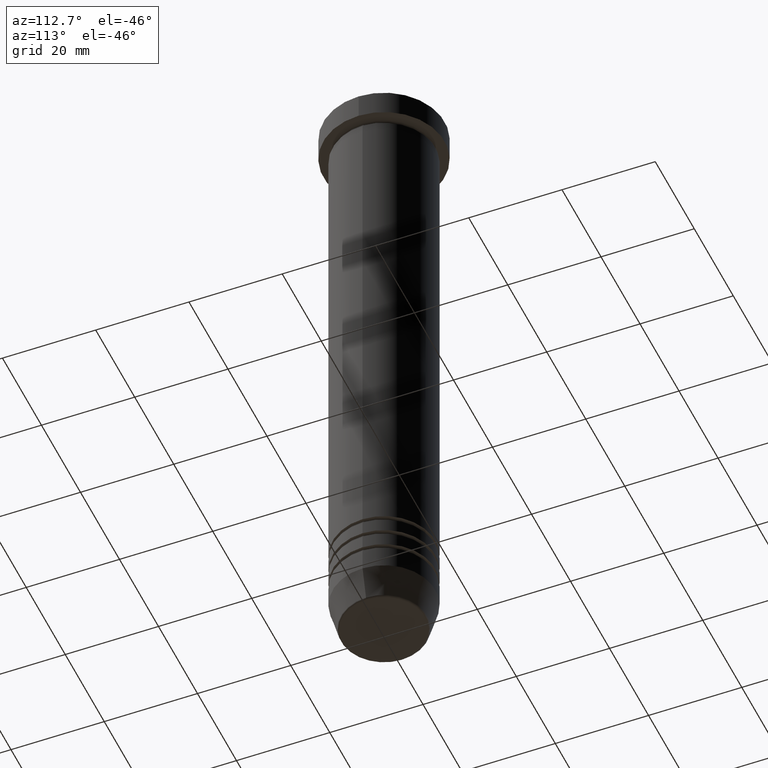
[diagram: clean part render]
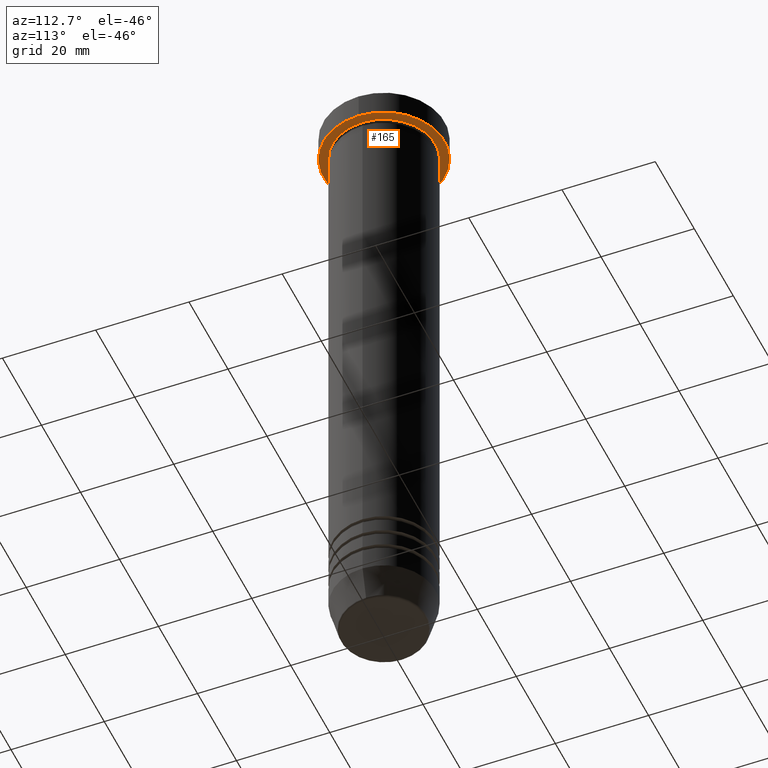
[diagram: same view with one face highlighted and labeled with its STEP entity id]
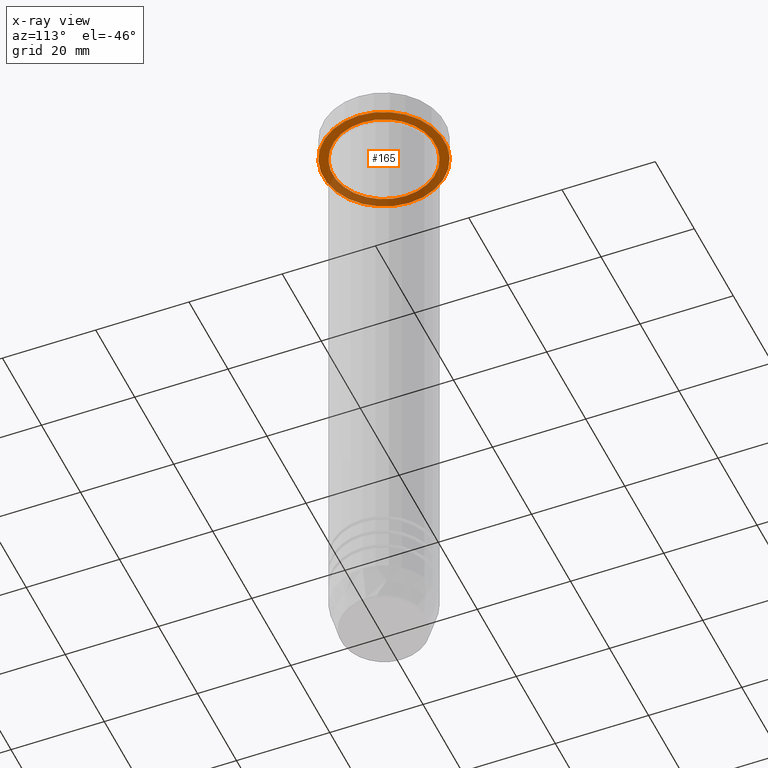
[diagram: x-ray of the same camera — body ghosted, the highlighted face saturated]
A machine part, auxiliary view. The second image highlights one B-rep face of the part: STEP entity #165.
The next image is the same camera in x-ray: the body ghosted, the highlighted face saturated — about 33% of this face is hidden behind the body in this view.
In plain terms, the highlighted planar face has unit normal (0, 0, -1).
Its self-contained STEP definition (entity closure, byte-faithful):
#24 = EDGE_CURVE ( 'NONE', #136, #493, #92, .T. ) ;
#33 = CARTESIAN_POINT ( 'NONE',  ( 13.00000000000000000, 0.000000000000000000, -6.000000000000000000 ) ) ;
#82 = DIRECTION ( 'NONE',  ( 1.000000000000000000, 0.000000000000000000, 0.000000000000000000 ) ) ;
#92 = CIRCLE ( 'NONE', #476, 11.00000000000000000 ) ;
#95 = EDGE_LOOP ( 'NONE', ( #1019, #1054 ) ) ;
#99 = DIRECTION ( 'NONE',  ( -0.000000000000000000, -0.000000000000000000, 1.000000000000000000 ) ) ;
#108 = CARTESIAN_POINT ( 'NONE',  ( 0.000000000000000000, 0.000000000000000000, -6.000000000000000000 ) ) ;
#136 = VERTEX_POINT ( 'NONE', #655 ) ;
#165 = ADVANCED_FACE ( 'NONE', ( #404, #499 ), #238, .T. ) ;
#183 = CARTESIAN_POINT ( 'NONE',  ( 0.000000000000000000, 13.00000000000000000, -6.000000000000000000 ) ) ;
#238 = PLANE ( 'NONE',  #638 ) ;
#298 = CARTESIAN_POINT ( 'NONE',  ( 0.000000000000000000, 0.000000000000000000, -6.000000000000000000 ) ) ;
#306 = CIRCLE ( 'NONE', #822, 13.00000000000000000 ) ;
#324 = DIRECTION ( 'NONE',  ( -1.000000000000000000, 0.000000000000000000, -0.000000000000000000 ) ) ;
#328 = CARTESIAN_POINT ( 'NONE',  ( 0.000000000000000000, 0.000000000000000000, -6.000000000000000000 ) ) ;
#350 = VERTEX_POINT ( 'NONE', #33 ) ;
#400 = AXIS2_PLACEMENT_3D ( 'NONE', #108, #423, #842 ) ;
#404 = FACE_BOUND ( 'NONE', #95, .T. ) ;
#418 = CIRCLE ( 'NONE', #400, 11.00000000000000000 ) ;
#423 = DIRECTION ( 'NONE',  ( -0.000000000000000000, -0.000000000000000000, 1.000000000000000000 ) ) ;
#463 = CARTESIAN_POINT ( 'NONE',  ( 0.000000000000000000, 0.000000000000000000, -6.000000000000000000 ) ) ;
#465 = EDGE_CURVE ( 'NONE', #1007, #350, #306, .T. ) ;
#476 = AXIS2_PLACEMENT_3D ( 'NONE', #463, #641, #1039 ) ;
#493 = VERTEX_POINT ( 'NONE', #630 ) ;
#499 = FACE_OUTER_BOUND ( 'NONE', #576, .T. ) ;
#516 = AXIS2_PLACEMENT_3D ( 'NONE', #328, #99, #82 ) ;
#526 = ORIENTED_EDGE ( 'NONE', *, *, #465, .F. ) ;
#576 = EDGE_LOOP ( 'NONE', ( #768, #526 ) ) ;
#629 = EDGE_CURVE ( 'NONE', #350, #1007, #1037, .T. ) ;
#630 = CARTESIAN_POINT ( 'NONE',  ( 11.00000000000000000, 1.347111479062088405E-15, -6.000000000000000000 ) ) ;
#638 = AXIS2_PLACEMENT_3D ( 'NONE', #183, #1000, #324 ) ;
#641 = DIRECTION ( 'NONE',  ( -0.000000000000000000, -0.000000000000000000, 1.000000000000000000 ) ) ;
#655 = CARTESIAN_POINT ( 'NONE',  ( -11.00000000000000000, 0.000000000000000000, -6.000000000000000000 ) ) ;
#699 = CARTESIAN_POINT ( 'NONE',  ( -13.00000000000000000, 1.592040838891559095E-15, -6.000000000000000000 ) ) ;
#730 = EDGE_CURVE ( 'NONE', #493, #136, #418, .T. ) ;
#768 = ORIENTED_EDGE ( 'NONE', *, *, #629, .F. ) ;
#822 = AXIS2_PLACEMENT_3D ( 'NONE', #298, #962, #966 ) ;
#842 = DIRECTION ( 'NONE',  ( -1.000000000000000000, 0.000000000000000000, 0.000000000000000000 ) ) ;
#962 = DIRECTION ( 'NONE',  ( -0.000000000000000000, -0.000000000000000000, 1.000000000000000000 ) ) ;
#966 = DIRECTION ( 'NONE',  ( 1.000000000000000000, 0.000000000000000000, 0.000000000000000000 ) ) ;
#1000 = DIRECTION ( 'NONE',  ( 0.000000000000000000, 0.000000000000000000, -1.000000000000000000 ) ) ;
#1007 = VERTEX_POINT ( 'NONE', #699 ) ;
#1019 = ORIENTED_EDGE ( 'NONE', *, *, #24, .T. ) ;
#1037 = CIRCLE ( 'NONE', #516, 13.00000000000000000 ) ;
#1039 = DIRECTION ( 'NONE',  ( -1.000000000000000000, 0.000000000000000000, 0.000000000000000000 ) ) ;
#1054 = ORIENTED_EDGE ( 'NONE', *, *, #730, .T. ) ;